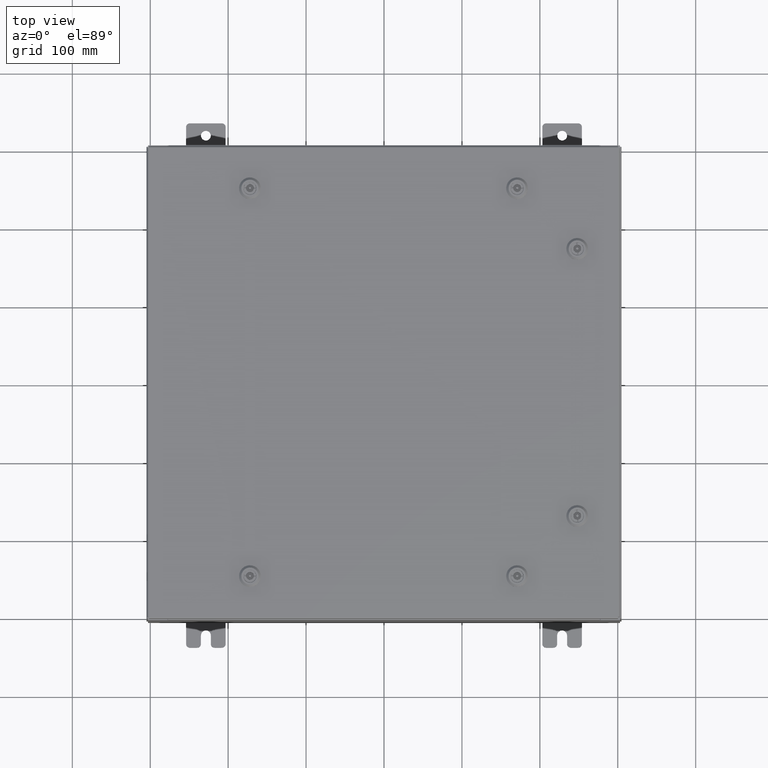
[diagram: clean part render]
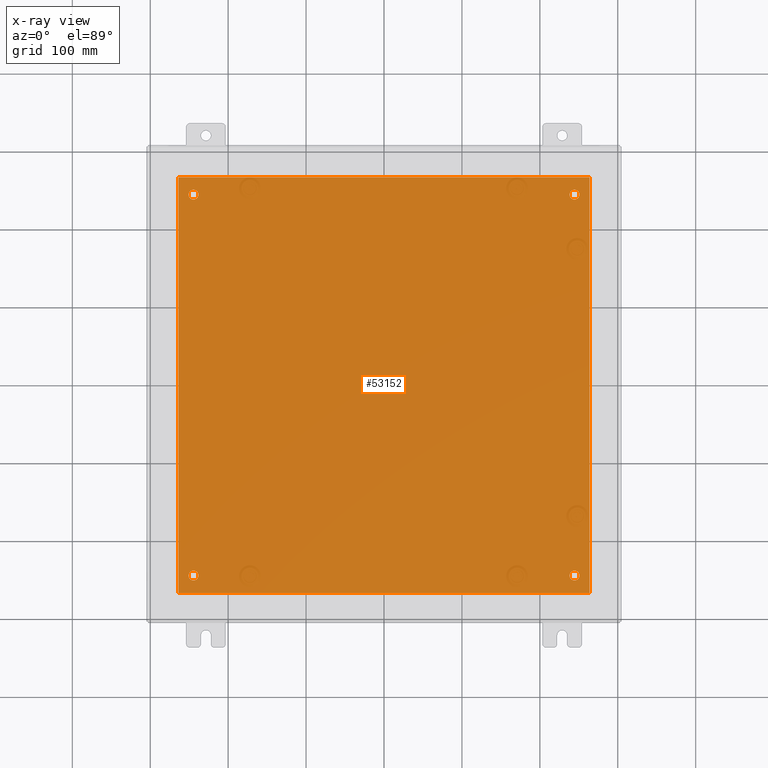
[diagram: x-ray — body ghosted, one internal face saturated and labeled with its STEP entity id]
A machine part, top view, then the same camera in x-ray: the body is ghosted and one INTERNAL B-rep face — a face not visible from any outside direction — is saturated and labeled: STEP entity #53152.
In plain terms, the highlighted planar face has unit normal (0, 0, -1).
Its self-contained STEP definition (entity closure, byte-faithful):
#21 = VERTEX_POINT ( 'NONE', #45915 ) ;
#1323 = LINE ( 'NONE', #37185, #63430 ) ;
#1834 = EDGE_CURVE ( 'NONE', #9277, #17919, #30021, .T. ) ;
#2119 = CARTESIAN_POINT ( 'NONE',  ( -9.375000000000005300, -9.625000000000001800, -0.1039999999999999800 ) ) ;
#3007 = DIRECTION ( 'NONE',  ( -1.000000000000000000, 0.0000000000000000000, 0.0000000000000000000 ) ) ;
#3029 = DIRECTION ( 'NONE',  ( -0.0000000000000000000, -0.0000000000000000000, 1.000000000000000000 ) ) ;
#3242 = ORIENTED_EDGE ( 'NONE', *, *, #45244, .T. ) ;
#5275 = FACE_BOUND ( 'NONE', #27790, .T. ) ;
#5420 = AXIS2_PLACEMENT_3D ( 'NONE', #52208, #22820, #57082 ) ;
#7191 = LINE ( 'NONE', #17902, #57801 ) ;
#7319 = CIRCLE ( 'NONE', #5420, 0.2499999999999976100 ) ;
#7548 = CARTESIAN_POINT ( 'NONE',  ( -10.50000000000000000, 10.50000000000000200, -0.1039999999999999800 ) ) ;
#8217 = DIRECTION ( 'NONE',  ( 0.0000000000000000000, 1.000000000000000000, 0.0000000000000000000 ) ) ;
#8613 = DIRECTION ( 'NONE',  ( -0.0000000000000000000, -0.0000000000000000000, 1.000000000000000000 ) ) ;
#9047 = CIRCLE ( 'NONE', #24694, 0.2499999999999987000 ) ;
#9277 = VERTEX_POINT ( 'NONE', #19356 ) ;
#9454 = PLANE ( 'NONE',  #57980 ) ;
#9644 = VERTEX_POINT ( 'NONE', #2119 ) ;
#9673 = DIRECTION ( 'NONE',  ( 0.0000000000000000000, 0.0000000000000000000, -1.000000000000000000 ) ) ;
#11840 = EDGE_CURVE ( 'NONE', #29390, #16591, #27692, .T. ) ;
#14280 = CARTESIAN_POINT ( 'NONE',  ( -10.38299999999999900, -10.50000000000000000, -0.1040000000000031300 ) ) ;
#14667 = EDGE_CURVE ( 'NONE', #16591, #29390, #20694, .T. ) ;
#15867 = LINE ( 'NONE', #7548, #28966 ) ;
#16106 = ORIENTED_EDGE ( 'NONE', *, *, #23095, .T. ) ;
#16591 = VERTEX_POINT ( 'NONE', #44928 ) ;
#16883 = EDGE_CURVE ( 'NONE', #17919, #21, #1323, .T. ) ;
#16936 = VECTOR ( 'NONE', #27333, 39.37007874015748100 ) ;
#17902 = CARTESIAN_POINT ( 'NONE',  ( 10.38300000000000100, -10.50000000000000200, -0.1040000000000009100 ) ) ;
#17919 = VERTEX_POINT ( 'NONE', #14280 ) ;
#18020 = DIRECTION ( 'NONE',  ( -0.0000000000000000000, -0.0000000000000000000, 1.000000000000000000 ) ) ;
#19356 = CARTESIAN_POINT ( 'NONE',  ( -10.38299999999999900, 10.50000000000000400, -0.1040000000000031300 ) ) ;
#19484 = EDGE_CURVE ( 'NONE', #42177, #48308, #7319, .T. ) ;
#19727 = AXIS2_PLACEMENT_3D ( 'NONE', #50363, #20952, #55221 ) ;
#20104 = VERTEX_POINT ( 'NONE', #46410 ) ;
#20606 = CARTESIAN_POINT ( 'NONE',  ( -9.625000000000005300, 9.625000000000001800, -0.1039999999999999800 ) ) ;
#20694 = CIRCLE ( 'NONE', #39008, 0.2499999999999976100 ) ;
#20952 = DIRECTION ( 'NONE',  ( -0.0000000000000000000, -0.0000000000000000000, 1.000000000000000000 ) ) ;
#21068 = DIRECTION ( 'NONE',  ( -0.0000000000000000000, -0.0000000000000000000, 1.000000000000000000 ) ) ;
#22360 = ORIENTED_EDGE ( 'NONE', *, *, #49403, .T. ) ;
#22578 = ORIENTED_EDGE ( 'NONE', *, *, #19484, .T. ) ;
#22802 = ORIENTED_EDGE ( 'NONE', *, *, #14667, .T. ) ;
#22820 = DIRECTION ( 'NONE',  ( -0.0000000000000000000, -0.0000000000000000000, 1.000000000000000000 ) ) ;
#23095 = EDGE_CURVE ( 'NONE', #40691, #63568, #39361, .T. ) ;
#23933 = EDGE_LOOP ( 'NONE', ( #16106, #22360 ) ) ;
#24694 = AXIS2_PLACEMENT_3D ( 'NONE', #32512, #3029, #37401 ) ;
#25537 = DIRECTION ( 'NONE',  ( -1.000000000000000000, 0.0000000000000000000, 0.0000000000000000000 ) ) ;
#27239 = VERTEX_POINT ( 'NONE', #54078 ) ;
#27333 = DIRECTION ( 'NONE',  ( 0.0000000000000000000, -1.000000000000000000, 0.0000000000000000000 ) ) ;
#27692 = CIRCLE ( 'NONE', #41004, 0.2499999999999976100 ) ;
#27790 = EDGE_LOOP ( 'NONE', ( #60552, #43529 ) ) ;
#28966 = VECTOR ( 'NONE', #36987, 39.37007874015748100 ) ;
#29004 = AXIS2_PLACEMENT_3D ( 'NONE', #61736, #32489, #3007 ) ;
#29390 = VERTEX_POINT ( 'NONE', #59355 ) ;
#29886 = FACE_BOUND ( 'NONE', #53917, .T. ) ;
#29908 = ORIENTED_EDGE ( 'NONE', *, *, #42093, .F. ) ;
#30021 = LINE ( 'NONE', #32087, #16936 ) ;
#32087 = CARTESIAN_POINT ( 'NONE',  ( -10.38299999999999900, 10.50000000000000400, -0.1040000000000031300 ) ) ;
#32489 = DIRECTION ( 'NONE',  ( -0.0000000000000000000, -0.0000000000000000000, 1.000000000000000000 ) ) ;
#32512 = CARTESIAN_POINT ( 'NONE',  ( -9.625000000000005300, -9.625000000000001800, -0.1039999999999999800 ) ) ;
#32881 = AXIS2_PLACEMENT_3D ( 'NONE', #38030, #8613, #42942 ) ;
#36104 = DIRECTION ( 'NONE',  ( 1.000000000000000000, 0.0000000000000000000, 0.0000000000000000000 ) ) ;
#36987 = DIRECTION ( 'NONE',  ( -1.000000000000000000, -0.0000000000000000000, -0.0000000000000000000 ) ) ;
#37169 = EDGE_CURVE ( 'NONE', #27239, #9644, #43186, .T. ) ;
#37185 = CARTESIAN_POINT ( 'NONE',  ( -10.50000000000000200, -10.50000000000000000, -0.1039999999999999800 ) ) ;
#37401 = DIRECTION ( 'NONE',  ( -1.000000000000000000, 0.0000000000000000000, 0.0000000000000000000 ) ) ;
#38030 = CARTESIAN_POINT ( 'NONE',  ( -9.625000000000005300, -9.625000000000001800, -0.1039999999999999800 ) ) ;
#39008 = AXIS2_PLACEMENT_3D ( 'NONE', #47434, #18020, #52346 ) ;
#39095 = CARTESIAN_POINT ( 'NONE',  ( 0.0000000000000000000, 0.0000000000000000000, -0.1039999999999999800 ) ) ;
#39361 = CIRCLE ( 'NONE', #41741, 0.2499999999999987000 ) ;
#40691 = VERTEX_POINT ( 'NONE', #56654 ) ;
#41004 = AXIS2_PLACEMENT_3D ( 'NONE', #50483, #21068, #55350 ) ;
#41384 = FACE_OUTER_BOUND ( 'NONE', #49148, .T. ) ;
#41741 = AXIS2_PLACEMENT_3D ( 'NONE', #20606, #54889, #25537 ) ;
#41888 = CARTESIAN_POINT ( 'NONE',  ( 9.875000000000003600, -9.625000000000001800, -0.1039999999999999800 ) ) ;
#42093 = EDGE_CURVE ( 'NONE', #21, #20104, #7191, .T. ) ;
#42177 = VERTEX_POINT ( 'NONE', #57695 ) ;
#42649 = ORIENTED_EDGE ( 'NONE', *, *, #11840, .T. ) ;
#42942 = DIRECTION ( 'NONE',  ( -1.000000000000000000, 0.0000000000000000000, 0.0000000000000000000 ) ) ;
#43186 = CIRCLE ( 'NONE', #32881, 0.2499999999999987000 ) ;
#43332 = EDGE_LOOP ( 'NONE', ( #3242, #22578 ) ) ;
#43529 = ORIENTED_EDGE ( 'NONE', *, *, #37169, .T. ) ;
#44043 = DIRECTION ( 'NONE',  ( -1.000000000000000000, 0.0000000000000000000, -0.0000000000000000000 ) ) ;
#44489 = FACE_BOUND ( 'NONE', #43332, .T. ) ;
#44928 = CARTESIAN_POINT ( 'NONE',  ( 9.375000000000007100, 9.625000000000001800, -0.1039999999999999800 ) ) ;
#45244 = EDGE_CURVE ( 'NONE', #48308, #42177, #59164, .T. ) ;
#45915 = CARTESIAN_POINT ( 'NONE',  ( 10.38299999999999900, -10.50000000000000000, -0.1039999999999999800 ) ) ;
#46410 = CARTESIAN_POINT ( 'NONE',  ( 10.38300000000000100, 10.50000000000000200, -0.1039999999999999800 ) ) ;
#47434 = CARTESIAN_POINT ( 'NONE',  ( 9.625000000000005300, 9.625000000000001800, -0.1039999999999999800 ) ) ;
#48308 = VERTEX_POINT ( 'NONE', #41888 ) ;
#49148 = EDGE_LOOP ( 'NONE', ( #57555, #56075, #57672, #29908 ) ) ;
#49403 = EDGE_CURVE ( 'NONE', #63568, #40691, #63584, .T. ) ;
#50363 = CARTESIAN_POINT ( 'NONE',  ( -9.625000000000005300, 9.625000000000001800, -0.1039999999999999800 ) ) ;
#50483 = CARTESIAN_POINT ( 'NONE',  ( 9.625000000000005300, 9.625000000000001800, -0.1039999999999999800 ) ) ;
#50984 = EDGE_CURVE ( 'NONE', #9644, #27239, #9047, .T. ) ;
#52208 = CARTESIAN_POINT ( 'NONE',  ( 9.625000000000005300, -9.625000000000001800, -0.1039999999999999800 ) ) ;
#52342 = EDGE_CURVE ( 'NONE', #20104, #9277, #15867, .T. ) ;
#52346 = DIRECTION ( 'NONE',  ( -1.000000000000000000, 0.0000000000000000000, 0.0000000000000000000 ) ) ;
#53152 = ADVANCED_FACE ( 'NONE', ( #5275, #44489, #29886, #54409, #41384 ), #9454, .T. ) ;
#53350 = CARTESIAN_POINT ( 'NONE',  ( -9.875000000000005300, 9.625000000000001800, -0.1039999999999999800 ) ) ;
#53917 = EDGE_LOOP ( 'NONE', ( #42649, #22802 ) ) ;
#54078 = CARTESIAN_POINT ( 'NONE',  ( -9.875000000000005300, -9.625000000000001800, -0.1039999999999999800 ) ) ;
#54409 = FACE_BOUND ( 'NONE', #23933, .T. ) ;
#54889 = DIRECTION ( 'NONE',  ( -0.0000000000000000000, -0.0000000000000000000, 1.000000000000000000 ) ) ;
#55221 = DIRECTION ( 'NONE',  ( -1.000000000000000000, 0.0000000000000000000, 0.0000000000000000000 ) ) ;
#55350 = DIRECTION ( 'NONE',  ( -1.000000000000000000, 0.0000000000000000000, 0.0000000000000000000 ) ) ;
#56075 = ORIENTED_EDGE ( 'NONE', *, *, #1834, .F. ) ;
#56654 = CARTESIAN_POINT ( 'NONE',  ( -9.375000000000005300, 9.625000000000001800, -0.1039999999999999800 ) ) ;
#57082 = DIRECTION ( 'NONE',  ( -1.000000000000000000, 0.0000000000000000000, 0.0000000000000000000 ) ) ;
#57555 = ORIENTED_EDGE ( 'NONE', *, *, #16883, .F. ) ;
#57672 = ORIENTED_EDGE ( 'NONE', *, *, #52342, .F. ) ;
#57695 = CARTESIAN_POINT ( 'NONE',  ( 9.375000000000007100, -9.625000000000001800, -0.1039999999999999800 ) ) ;
#57801 = VECTOR ( 'NONE', #8217, 39.37007874015748100 ) ;
#57980 = AXIS2_PLACEMENT_3D ( 'NONE', #39095, #9673, #44043 ) ;
#59164 = CIRCLE ( 'NONE', #29004, 0.2499999999999976100 ) ;
#59355 = CARTESIAN_POINT ( 'NONE',  ( 9.875000000000003600, 9.625000000000001800, -0.1039999999999999800 ) ) ;
#60552 = ORIENTED_EDGE ( 'NONE', *, *, #50984, .T. ) ;
#61736 = CARTESIAN_POINT ( 'NONE',  ( 9.625000000000005300, -9.625000000000001800, -0.1039999999999999800 ) ) ;
#63430 = VECTOR ( 'NONE', #36104, 39.37007874015748100 ) ;
#63568 = VERTEX_POINT ( 'NONE', #53350 ) ;
#63584 = CIRCLE ( 'NONE', #19727, 0.2499999999999987000 ) ;